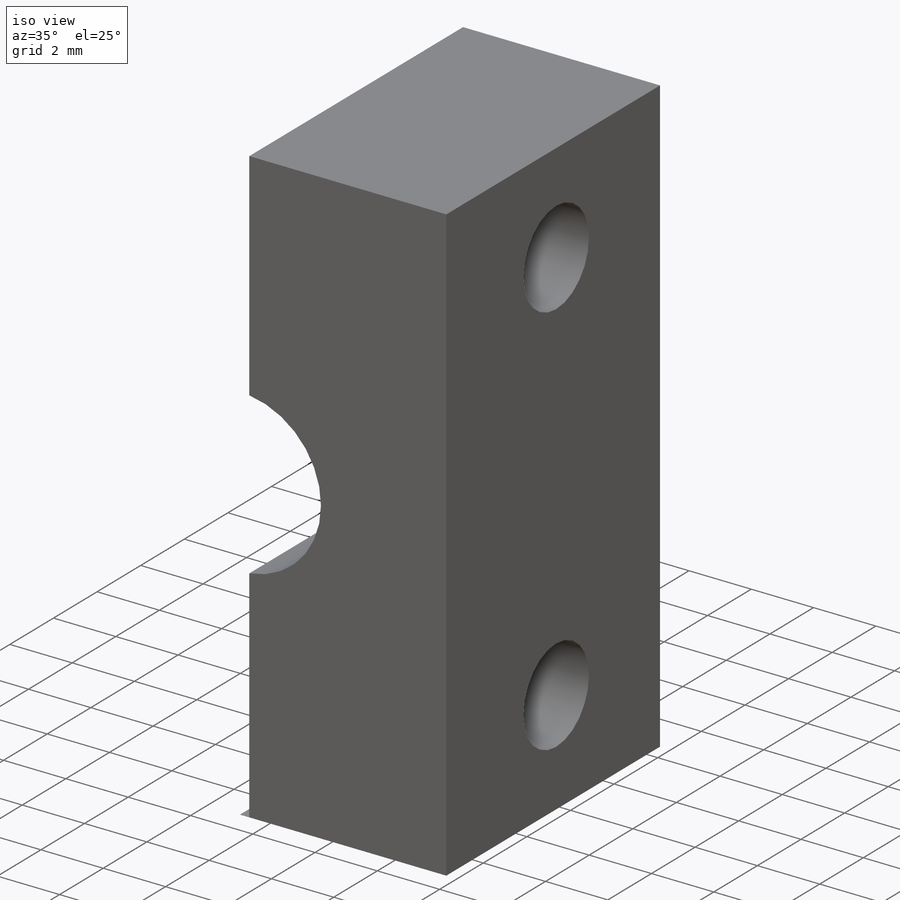
[diagram: iso view]
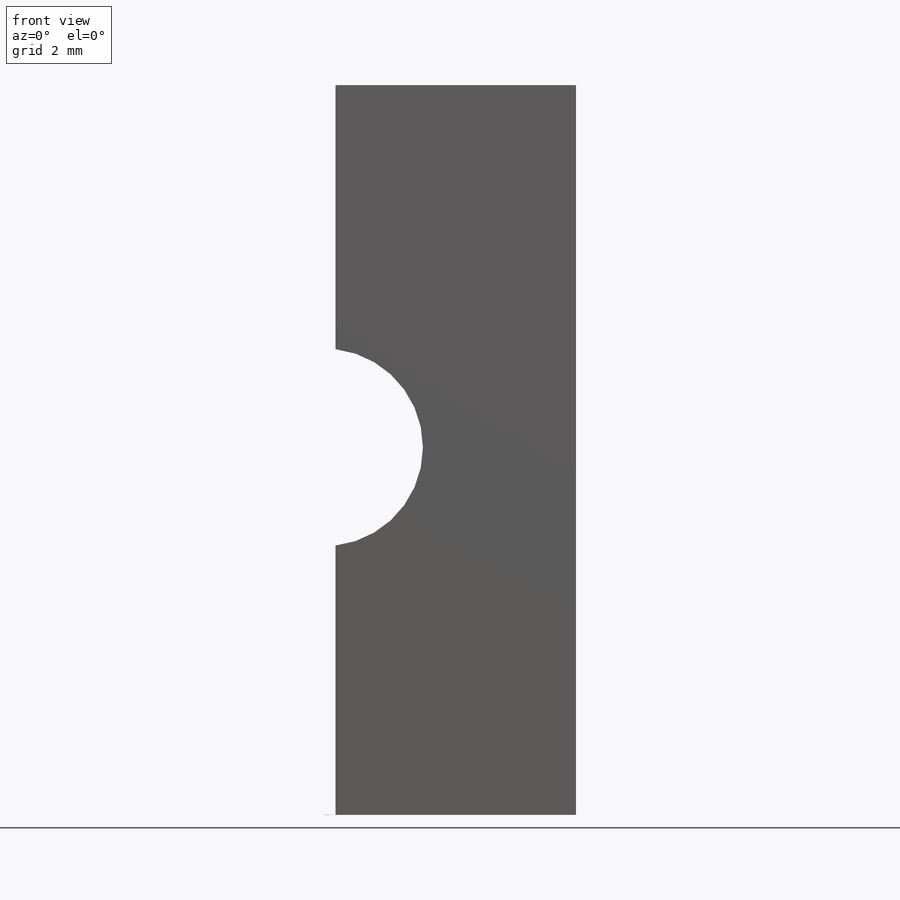
[diagram: front view]
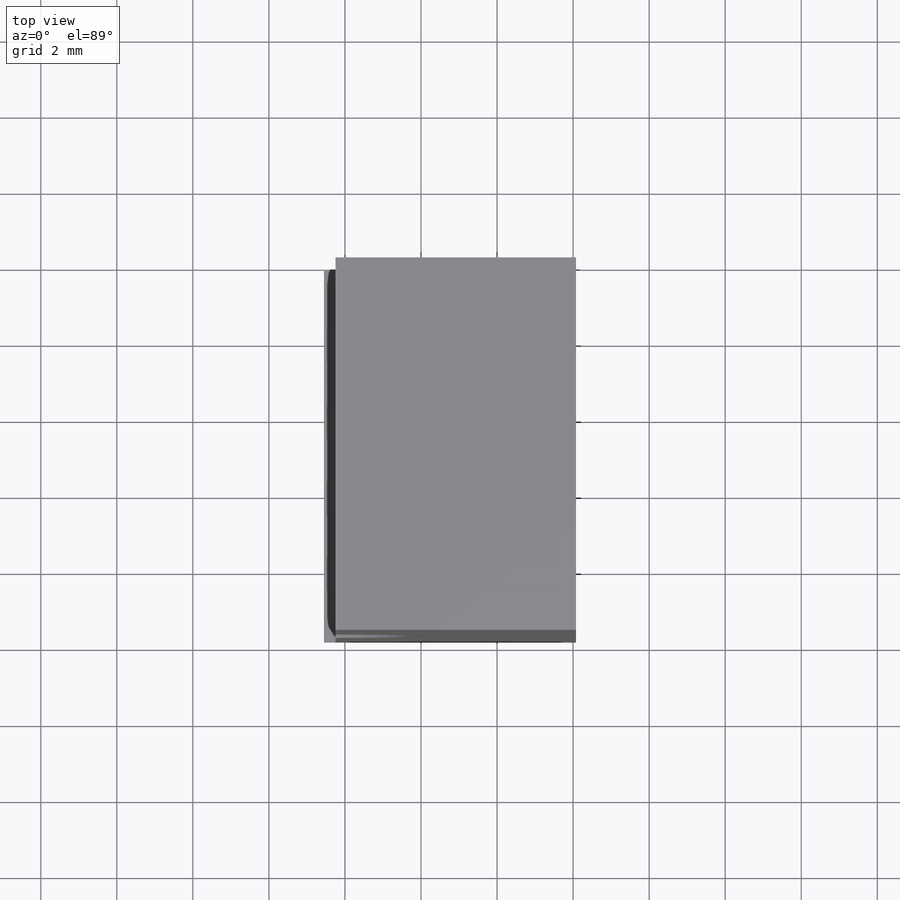
[diagram: top view]
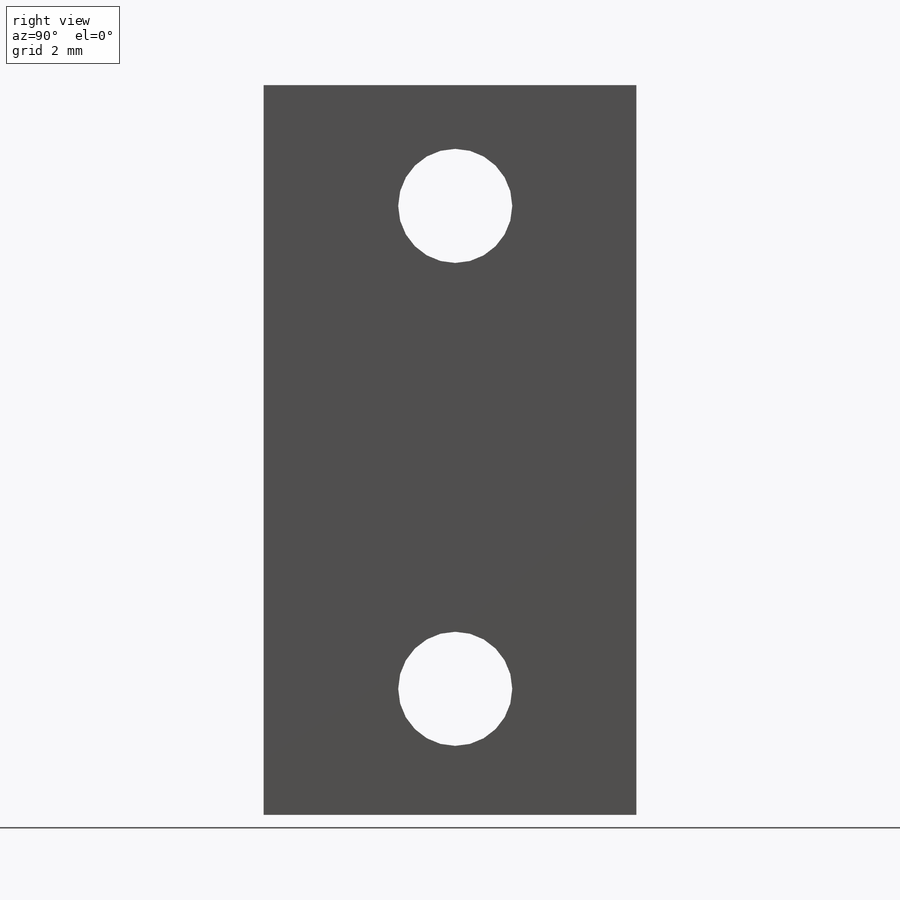
[diagram: right view]
SOLIDWORKS PART (.sldprt)
format: sldprt  version: not decoded by parser v0  size: 266,752 bytes
history: native  units: mm
features: sketch x4, cut_extrude x2, material x1, extrude x1 (+15 scaffold rows collapsed)
feature tree (23):
  scaffold x15  (default folders/planes/origin — collapsed)
  material  "Pure Gold"
  sketch  "Sketch4"  dims[c1.D20=~12.224278mm c1.D18=15.5mm c1.D26=~12.683392mm c1.D27=~12.687053mm c1.D28=~12.683392mm c1.D1=58.32mm c1.D2=31.0mm c1.D3=15.58mm c1.D4=31.0mm c1.D5=147.6375mm c1.D6=15.5mm c1.D7=15.5mm c1.D8=6.05mm c1.D9=6.05mm c1.D10=6.05mm c1.D11=6.05mm c1.D12=6.05mm c1.D13=6.05mm c1.D14=3.175mm c1.D15=3.175mm c1.D16=3.175mm c1.D17=3.175mm c2.D18=~73.931507mm c2.D19=3.175mm c2.D5=21.825mm c2.D3=25.0mm c3.D18=29.0mm c3.D20=3.175mm c3.D21=3.175mm c3.D22=46.55mm c3.D23=47.1mm c3.D24=58.32mm c3.D25=147.6375mm c3.D26=73.82mm c4.D25=147.6375mm c4.D27=64.65mm c4.D20=~178.954708deg]
  sketch  "Sketch5"  dims[D1=2.1mm]
  extrude  "Extrude1"  Depth=9.8mm
  sketch  "Sketch7"  dims[D1=1.5875mm]
  cut_extrude  "Extrude3"  [1 undecoded]
  sketch  "Sketch9"  dims[D1=0.3mm]
  cut_extrude  "Extrude4"  [1 undecoded]
decode coverage: 5 of 7 modeling features carry decoded parameters
note: ~ marks probable driven/reference dimensions
note: 2 parameter values undecoded
note: suppression state not decoded; provenance and decode notes live in map.json
